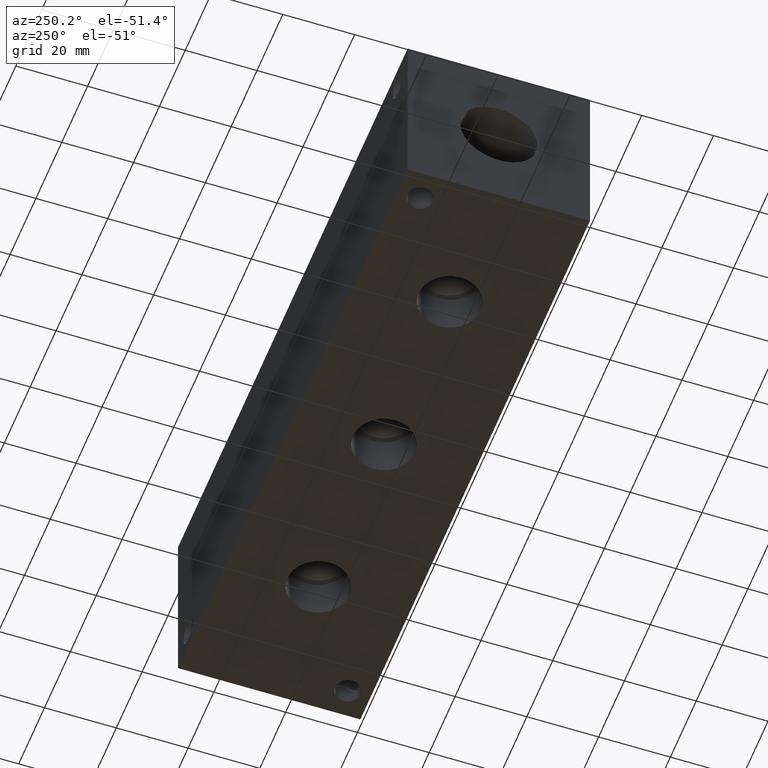
[diagram: clean part render]
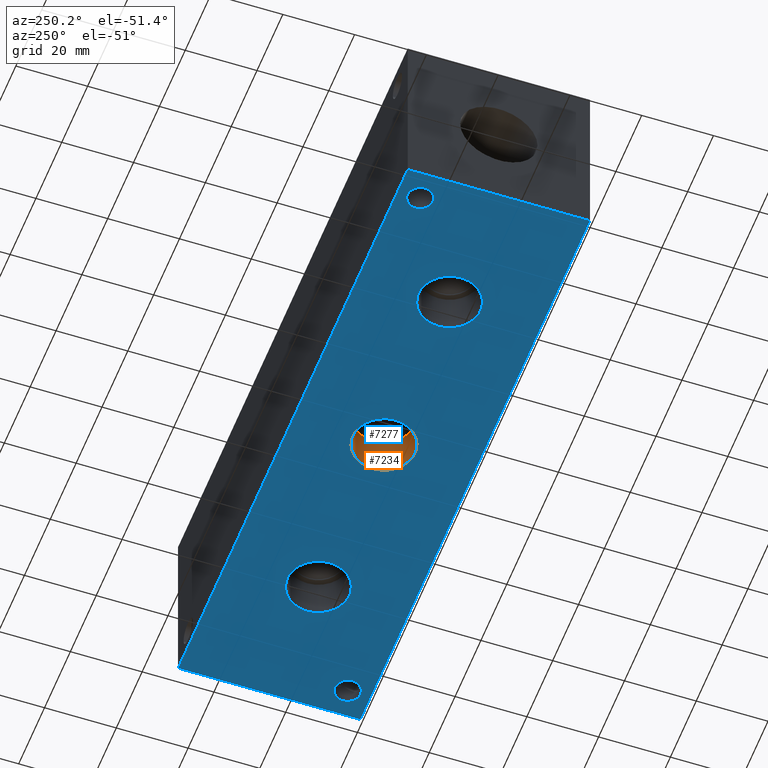
[diagram: same view with the hole feature highlighted: cylindrical wall and planar end face, labeled with their STEP entity ids]
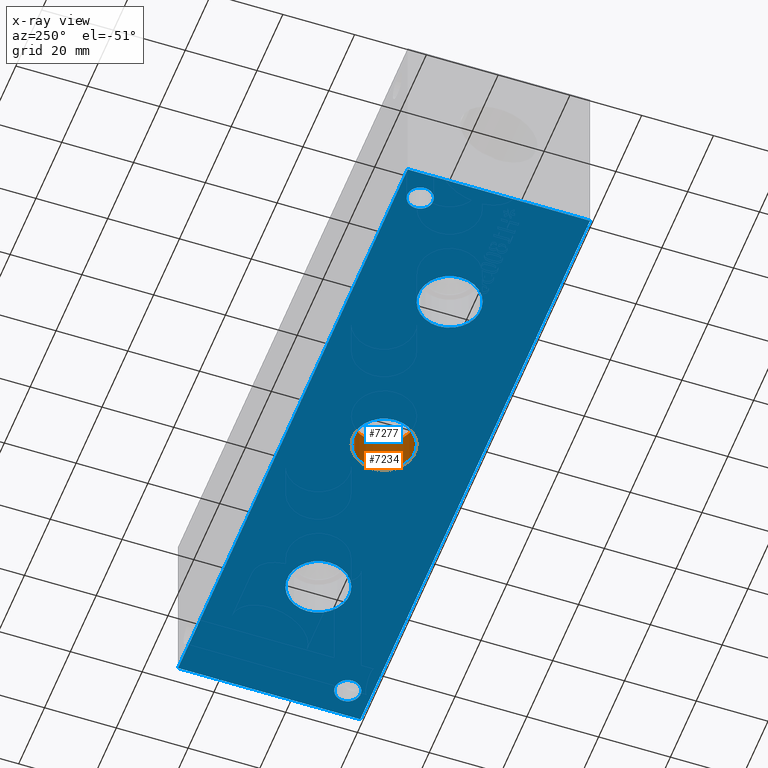
[diagram: x-ray of the same camera — body ghosted, the hole faces saturated]
A machine part, auxiliary view. The highlighted faces form one hole feature of diameter 17.2974 mm: the cylindrical wall (entity #7234, orange) and its adjacent planar end face (entity #7277, blue) — they share a circular edge in the B-rep.
The next image is the same camera in x-ray (body ghosted, the hole faces saturated) — the bore reads through the body.
Wall:
#22=CYLINDRICAL_SURFACE('',#7521,8.6487);
#66=CIRCLE('',#7518,8.6487);
#67=CIRCLE('',#7519,8.6487);
#69=CIRCLE('',#7522,8.6487);
#70=CIRCLE('',#7523,8.6487);
#829=FACE_OUTER_BOUND('',#1232,.T.);
#1232=EDGE_LOOP('',(#6145,#6146,#6147,#6148,#6149,#6150));
#1958=LINE('',#12264,#2661);
#2661=VECTOR('',#8756,8.6487);
#3303=VERTEX_POINT('',#12253);
#3304=VERTEX_POINT('',#12254);
#3306=VERTEX_POINT('',#12260);
#3307=VERTEX_POINT('',#12261);
#4270=EDGE_CURVE('',#3303,#3304,#66,.T.);
#4271=EDGE_CURVE('',#3304,#3303,#67,.T.);
#4273=EDGE_CURVE('',#3306,#3307,#69,.T.);
#4274=EDGE_CURVE('',#3307,#3306,#70,.T.);
#4275=EDGE_CURVE('',#3307,#3304,#1958,.T.);
#6145=ORIENTED_EDGE('',*,*,#4273,.F.);
#6146=ORIENTED_EDGE('',*,*,#4274,.F.);
#6147=ORIENTED_EDGE('',*,*,#4275,.T.);
#6148=ORIENTED_EDGE('',*,*,#4270,.F.);
#6149=ORIENTED_EDGE('',*,*,#4271,.F.);
#6150=ORIENTED_EDGE('',*,*,#4275,.F.);
#7234=ADVANCED_FACE('',(#829),#22,.F.);
#7518=AXIS2_PLACEMENT_3D('',#12255,#8744,#8745);
#7519=AXIS2_PLACEMENT_3D('',#12256,#8746,#8747);
#7521=AXIS2_PLACEMENT_3D('',#12259,#8750,#8751);
#7522=AXIS2_PLACEMENT_3D('',#12262,#8752,#8753);
#7523=AXIS2_PLACEMENT_3D('',#12263,#8754,#8755);
#8744=DIRECTION('center_axis',(0.,0.,-1.));
#8745=DIRECTION('ref_axis',(1.,0.,0.));
#8746=DIRECTION('center_axis',(0.,0.,-1.));
#8747=DIRECTION('ref_axis',(1.,0.,0.));
#8750=DIRECTION('center_axis',(0.,0.,-1.));
#8751=DIRECTION('ref_axis',(1.,0.,0.));
#8752=DIRECTION('center_axis',(0.,0.,1.));
#8753=DIRECTION('ref_axis',(1.,0.,0.));
#8754=DIRECTION('center_axis',(0.,0.,1.));
#8755=DIRECTION('ref_axis',(1.,0.,0.));
#8756=DIRECTION('',(0.,0.,1.));
#12253=CARTESIAN_POINT('',(97.5487,25.4,11.7348));
#12254=CARTESIAN_POINT('',(80.2513,25.4,11.7348));
#12255=CARTESIAN_POINT('Origin',(88.9,25.4,11.7348));
#12256=CARTESIAN_POINT('Origin',(88.9,25.4,11.7348));
#12259=CARTESIAN_POINT('Origin',(88.9,25.4,5.8674));
#12260=CARTESIAN_POINT('',(97.5487,25.4,0.));
#12261=CARTESIAN_POINT('',(80.2513,25.4,0.));
#12262=CARTESIAN_POINT('Origin',(88.9,25.4,0.));
#12263=CARTESIAN_POINT('Origin',(88.9,25.4,0.));
#12264=CARTESIAN_POINT('',(80.2513,25.4,5.8674));
End face:
#69=CIRCLE('',#7522,8.6487);
#70=CIRCLE('',#7523,8.6487);
#76=CIRCLE('',#7533,8.6487);
#77=CIRCLE('',#7534,8.6487);
#83=CIRCLE('',#7544,8.6487);
#84=CIRCLE('',#7545,8.6487);
#120=CIRCLE('',#7617,3.5687);
#121=CIRCLE('',#7619,3.5687);
#500=FACE_BOUND('',#1289,.T.);
#501=FACE_BOUND('',#1290,.T.);
#502=FACE_BOUND('',#1291,.T.);
#503=FACE_BOUND('',#1292,.T.);
#504=FACE_BOUND('',#1293,.T.);
#872=FACE_OUTER_BOUND('',#1288,.T.);
#1288=EDGE_LOOP('',(#6359,#6360,#6361,#6362));
#1289=EDGE_LOOP('',(#6363,#6364));
#1290=EDGE_LOOP('',(#6365,#6366));
#1291=EDGE_LOOP('',(#6367,#6368));
#1292=EDGE_LOOP('',(#6369));
#1293=EDGE_LOOP('',(#6370));
#1989=LINE('',#12456,#2692);
#1992=LINE('',#12461,#2695);
#1994=LINE('',#12465,#2697);
#1996=LINE('',#12468,#2699);
#2692=VECTOR('',#8981,10.);
#2695=VECTOR('',#8986,10.);
#2697=VECTOR('',#8990,10.);
#2699=VECTOR('',#8994,10.);
#3306=VERTEX_POINT('',#12260);
#3307=VERTEX_POINT('',#12261);
#3314=VERTEX_POINT('',#12282);
#3315=VERTEX_POINT('',#12283);
#3322=VERTEX_POINT('',#12304);
#3323=VERTEX_POINT('',#12305);
#3368=VERTEX_POINT('',#12446);
#3369=VERTEX_POINT('',#12450);
#3370=VERTEX_POINT('',#12454);
#3371=VERTEX_POINT('',#12455);
#3372=VERTEX_POINT('',#12460);
#3373=VERTEX_POINT('',#12464);
#4273=EDGE_CURVE('',#3306,#3307,#69,.T.);
#4274=EDGE_CURVE('',#3307,#3306,#70,.T.);
#4283=EDGE_CURVE('',#3314,#3315,#76,.T.);
#4284=EDGE_CURVE('',#3315,#3314,#77,.T.);
#4293=EDGE_CURVE('',#3322,#3323,#83,.T.);
#4294=EDGE_CURVE('',#3323,#3322,#84,.T.);
#4362=EDGE_CURVE('',#3368,#3368,#120,.T.);
#4364=EDGE_CURVE('',#3369,#3369,#121,.T.);
#4365=EDGE_CURVE('',#3370,#3371,#1989,.T.);
#4368=EDGE_CURVE('',#3372,#3370,#1992,.T.);
#4370=EDGE_CURVE('',#3373,#3372,#1994,.T.);
#4372=EDGE_CURVE('',#3371,#3373,#1996,.T.);
#6359=ORIENTED_EDGE('',*,*,#4372,.F.);
#6360=ORIENTED_EDGE('',*,*,#4365,.F.);
#6361=ORIENTED_EDGE('',*,*,#4368,.F.);
#6362=ORIENTED_EDGE('',*,*,#4370,.F.);
#6363=ORIENTED_EDGE('',*,*,#4273,.T.);
#6364=ORIENTED_EDGE('',*,*,#4274,.T.);
#6365=ORIENTED_EDGE('',*,*,#4283,.T.);
#6366=ORIENTED_EDGE('',*,*,#4284,.T.);
#6367=ORIENTED_EDGE('',*,*,#4293,.T.);
#6368=ORIENTED_EDGE('',*,*,#4294,.T.);
#6369=ORIENTED_EDGE('',*,*,#4362,.T.);
#6370=ORIENTED_EDGE('',*,*,#4364,.T.);
#6596=PLANE('',#7625);
#7277=ADVANCED_FACE('',(#872,#500,#501,#502,#503,#504),#6596,.F.);
#7522=AXIS2_PLACEMENT_3D('',#12262,#8752,#8753);
#7523=AXIS2_PLACEMENT_3D('',#12263,#8754,#8755);
#7533=AXIS2_PLACEMENT_3D('',#12284,#8777,#8778);
#7534=AXIS2_PLACEMENT_3D('',#12285,#8779,#8780);
#7544=AXIS2_PLACEMENT_3D('',#12306,#8802,#8803);
#7545=AXIS2_PLACEMENT_3D('',#12307,#8804,#8805);
#7617=AXIS2_PLACEMENT_3D('',#12448,#8972,#8973);
#7619=AXIS2_PLACEMENT_3D('',#12452,#8977,#8978);
#7625=AXIS2_PLACEMENT_3D('',#12470,#8997,#8998);
#8752=DIRECTION('center_axis',(0.,0.,1.));
#8753=DIRECTION('ref_axis',(1.,0.,0.));
#8754=DIRECTION('center_axis',(0.,0.,1.));
#8755=DIRECTION('ref_axis',(1.,0.,0.));
#8777=DIRECTION('center_axis',(0.,0.,1.));
#8778=DIRECTION('ref_axis',(1.,0.,0.));
#8779=DIRECTION('center_axis',(0.,0.,1.));
#8780=DIRECTION('ref_axis',(1.,0.,0.));
#8802=DIRECTION('center_axis',(0.,0.,1.));
#8803=DIRECTION('ref_axis',(1.,0.,0.));
#8804=DIRECTION('center_axis',(0.,0.,1.));
#8805=DIRECTION('ref_axis',(1.,0.,0.));
#8972=DIRECTION('center_axis',(0.,0.,1.));
#8973=DIRECTION('ref_axis',(1.,0.,0.));
#8977=DIRECTION('center_axis',(0.,0.,1.));
#8978=DIRECTION('ref_axis',(1.,0.,0.));
#8981=DIRECTION('',(0.,-1.,0.));
#8986=DIRECTION('',(-1.,0.,0.));
#8990=DIRECTION('',(0.,1.,0.));
#8994=DIRECTION('',(1.,0.,0.));
#8997=DIRECTION('center_axis',(0.,0.,1.));
#8998=DIRECTION('ref_axis',(1.,0.,0.));
#12260=CARTESIAN_POINT('',(97.5487,25.4,0.));
#12261=CARTESIAN_POINT('',(80.2513,25.4,0.));
#12262=CARTESIAN_POINT('Origin',(88.9,25.4,0.));
#12263=CARTESIAN_POINT('Origin',(88.9,25.4,0.));
#12282=CARTESIAN_POINT('',(46.7487,25.4,0.));
#12283=CARTESIAN_POINT('',(29.4513,25.4,0.));
#12284=CARTESIAN_POINT('Origin',(38.1,25.4,0.));
#12285=CARTESIAN_POINT('Origin',(38.1,25.4,0.));
#12304=CARTESIAN_POINT('',(148.3487,25.4,0.));
#12305=CARTESIAN_POINT('',(131.0513,25.4,0.));
#12306=CARTESIAN_POINT('Origin',(139.7,25.4,0.));
#12307=CARTESIAN_POINT('Origin',(139.7,25.4,0.));
#12446=CARTESIAN_POINT('',(4.3561,44.45,0.));
#12448=CARTESIAN_POINT('Origin',(7.9248,44.45,0.));
#12450=CARTESIAN_POINT('',(166.3065,6.35,0.));
#12452=CARTESIAN_POINT('Origin',(169.8752,6.35,0.));
#12454=CARTESIAN_POINT('',(0.,50.8,0.));
#12455=CARTESIAN_POINT('',(0.,0.,0.));
#12456=CARTESIAN_POINT('',(0.,50.8,0.));
#12460=CARTESIAN_POINT('',(177.8,50.8,0.));
#12461=CARTESIAN_POINT('',(177.8,50.8,0.));
#12464=CARTESIAN_POINT('',(177.8,0.,0.));
#12465=CARTESIAN_POINT('',(177.8,0.,0.));
#12468=CARTESIAN_POINT('',(0.,0.,0.));
#12470=CARTESIAN_POINT('Origin',(88.9,25.4,0.));